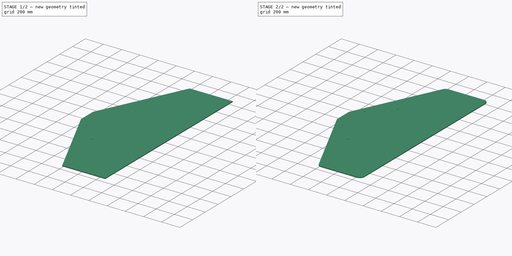
[diagram: build sequence overview — one tinted view per stage of 2, left to right]
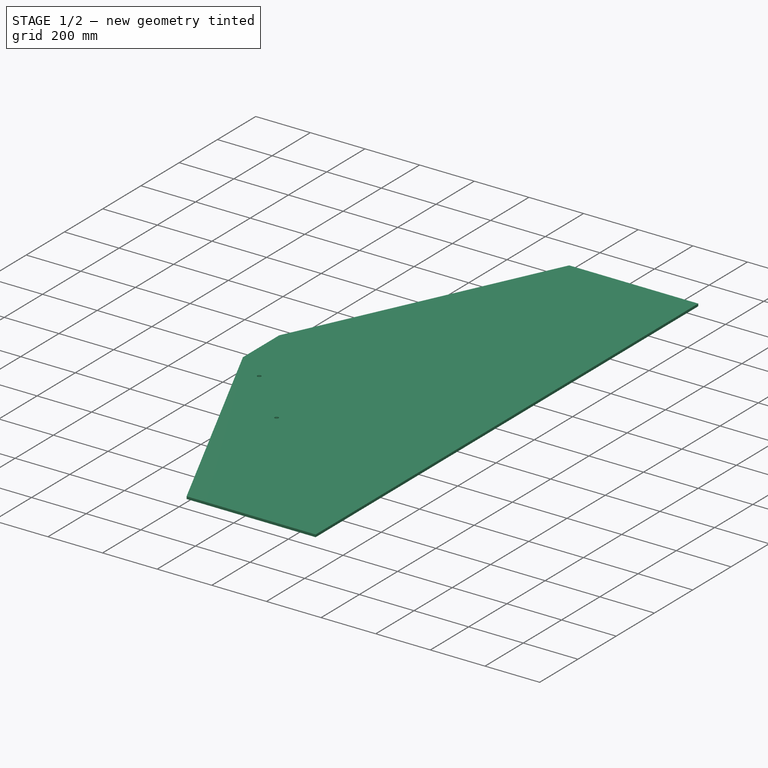
[diagram: stage 1 of 2 — iso view after this stage's code; geometry added in this stage tinted green]
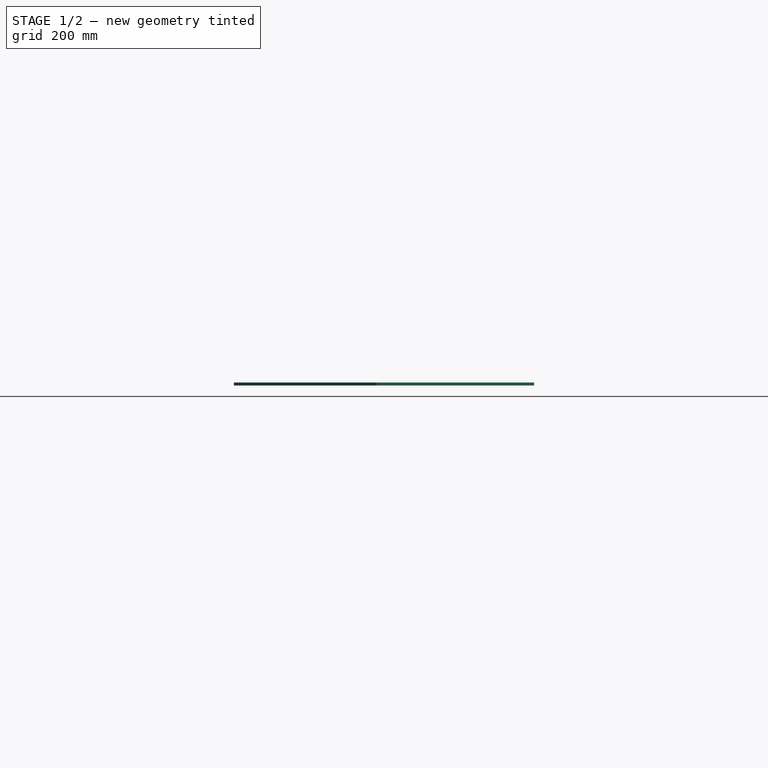
[diagram: stage 1 of 2 — front view after this stage's code; geometry added in this stage tinted green]
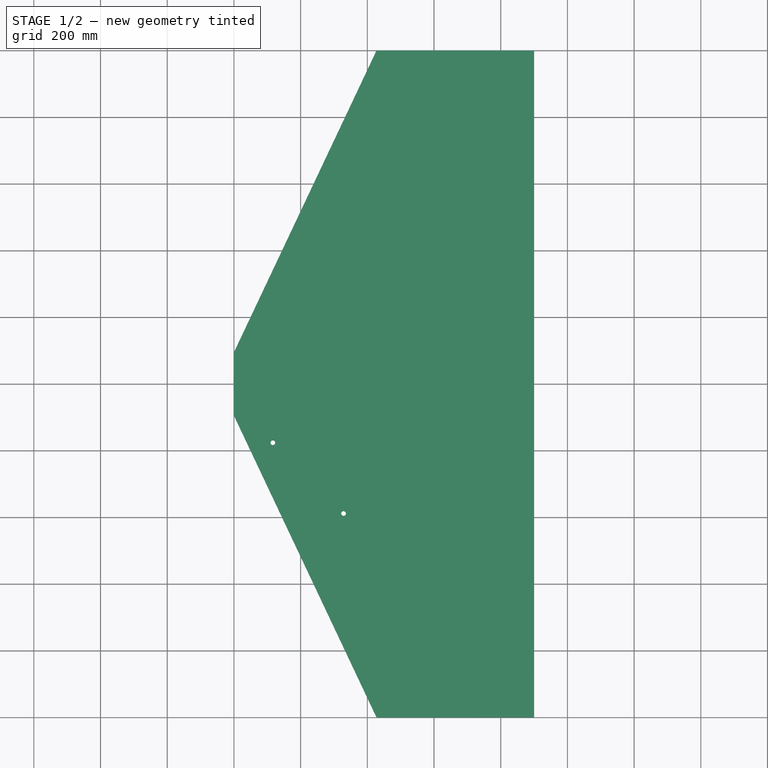
[diagram: stage 1 of 2 — top view after this stage's code; geometry added in this stage tinted green]
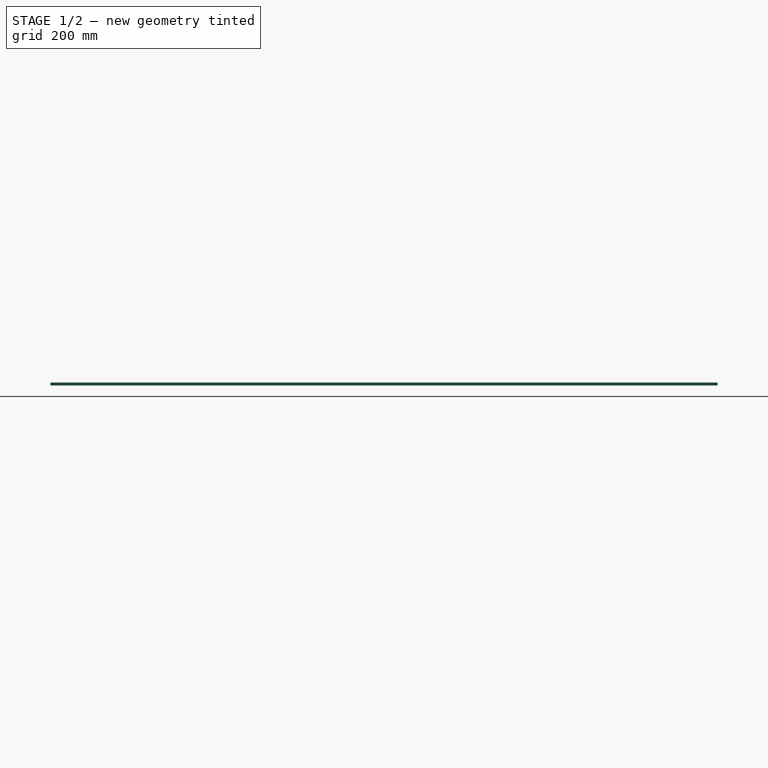
[diagram: stage 1 of 2 — right view after this stage's code; geometry added in this stage tinted green]
FCSTD DOCUMENT  (FreeCAD 1.0R39109 (Git))
Label: Tail_Vane
License: All rights reserved
LicenseURL: http://en.wikipedia.org/wiki/All_rights_reserved
objects: Sketcher::SketchObject×2, PartDesign::Pad×1, Spreadsheet::Sheet×1, PartDesign::Plane×1, PartDesign::Pocket×1, PartDesign::Mirrored×1, PartDesign::Fillet×1, PartDesign::Body×1
note: 17 computed .brp shape members not serialized (recipe doc carries the construction recipe); baked Part::Feature solids carry a one-line shape summary decoded from their .brp
EXTERNAL_REF file=../../Master_of_Puppets.FCStd obj=Alternator
EXTERNAL_REF file=../../Master_of_Puppets.FCStd obj=Spreadsheet
EXTERNAL_REF file=../../Master_of_Puppets.FCStd obj=Tail

FEATURE [Sketcher::SketchObject] Sketch
  ArcFitTolerance = 0
  AttachmentSupport = -> [XY_Plane001]
  FullyConstrained = true
  MakeInternals = false
  MapMode = 5
  expr: Constraints[16] = Spreadsheet.VaneWidth
  expr: Constraints[17] = Spreadsheet.VaneLength
  expr: Constraints[18] = Spreadsheet.LengthSmallSide
  expr: Constraints[19] = Spreadsheet.WidthSmall
  sketch-geometry (7):
    g0: LineSegment StartX=0 StartY=94.8607 StartZ=0 EndX=0 EndY=0 EndZ=0
    g1: LineSegment StartX=0 StartY=0 StartZ=0 EndX=0 EndY=-94.8607 EndZ=0
    g2: LineSegment StartX=0 StartY=-94.8607 StartZ=0 EndX=427.594 EndY=-1000 EndZ=0
    g3: LineSegment StartX=427.594 StartY=-1000 StartZ=0 EndX=900 EndY=-1000 EndZ=0
    g4: LineSegment StartX=900 StartY=-1000 StartZ=0 EndX=900 EndY=1000 EndZ=0
    g5: LineSegment StartX=900 StartY=1000 StartZ=0 EndX=427.594 EndY=1000 EndZ=0
    g6: LineSegment StartX=427.594 StartY=1000 StartZ=0 EndX=0 EndY=94.8607 EndZ=0
  constraints (20):
    c: PointOnObject(g0,g-2)
    c: Coincident(g0,g-1)
    c: Coincident(g-1,g1)
    c: PointOnObject(g1,g-2)
    c: Coincident(g1,g2)
    c: Coincident(g2,g3)
    c: Horizontal(g3)
    c: Coincident(g3,g4)
    c: Vertical(g4)
    c: Coincident(g4,g5)
    c: Horizontal(g5)
    c: Coincident(g5,g6)
    c: Coincident(g6,g0)
    c: Equal(g6,g2)
    c: Equal(g5,g3)
    c: Equal(g0,g1)
    c: DistanceX(g-1,g4) = 900
    c: DistanceY(g4,g4) = 2000
    c: DistanceY(g1,g1) = 94.8607
    c: DistanceX(g5,g5) = 472.406
FEATURE [PartDesign::Pad] Pad
  AllowMultiFace = false
  Direction = (0,0,1)
  Length = 9
  Length2 = 100
  Profile = -> Sketch
  Suppressed = false
  Type = 0
  expr: Length = Spreadsheet.VaneThickness
FEATURE [Spreadsheet::Sheet] Spreadsheet
  cells = A1='Inputs; A2='RotorRadius; B2(RotorRadius)==Master_of_Puppets#Spreadsheet.RotorDiskRadius; A3='BoomPipeDiameter; B3(BoomPipeDiameter)==Master_of_Puppets#Spreadsheet.BoomPipeDiameter; A4='HolesRadius; B4(HolesRadius)==Master_of_Puppets#Alternator.HolesRadius; A5='BracketLength; B5(BracketLength)==Master_of_Puppets#Spreadsheet.BracketLength; A6='BracketWidth; B6(BracketWidth)==Master_of_Puppets#Spreadsheet.BracketWidth; A7='VaneLength; B7(VaneLength)==Master_of_Puppets#Spreadsheet.VaneLength; A8='VaneWidth; B8(VaneWidth)==Master_of_Puppets#Spreadsheet.VaneWidth; A9='VaneThickness; B9(VaneThickness)==Master_of_Puppets#Spreadsheet.VaneThickness; A10='DistanceToFirstHole; B10(DistanceToFirstHole)==Master_of_Puppets#Tail.DistanceToFirstHole; A11='DistanceBetweenHoles; B11(DistanceBetweenHoles)==Master_of_Puppets#Tail.DistanceBetweenHoles; A12='VaneBracketAngle; B12(VaneBracketAngle)==Master_of_Puppets#Tail.VaneBracketAngle; A13='Calculated; A14='BoomPipeRadius; B14(BoomPipeRadius)==BoomPipeDiameter / 2; A15='Y_Holes; B15(Y_Holes)==BracketWidth / 2; C15='Duplicated in TailVaneBracket; A16='WidthAngleBracket; B16(WidthAngleBracket)==BracketWidth / cos(VaneBracketAngle); A17='HalfWidthAngleBracket; B17(HalfWidthAngleBracket)==WidthAngleBracket / 2; A18='LengthSmallSide; B18(LengthSmallSide)==tan(VaneBracketAngle) * WidthAngleBracket + BoomPipeRadius; A19='WidthSmall; B19(WidthSmall)==0.5 * VaneWidth / (1 - LengthSmallSide / VaneLength); A20='DistanceToFirstHoleFromMiddlePoint; B20(DistanceToFirstHoleFromMiddlePoint)==BracketLength - Y_Holes - DistanceToFirstHole
FEATURE [PartDesign::Plane] DatumPlane
  Length = 60
  MapMode = 2
  Placement = pos=(0,0,9) rot=(0,0,1;0rad)
  ResizeMode = 0
  Width = 60
  expr: .Placement.Base.z = Spreadsheet.VaneThickness
FEATURE [Sketcher::SketchObject] Sketch001  label="HolesSketch"
  ArcFitTolerance = 0
  AttachmentSupport = -> [DatumPlane]
  FullyConstrained = true
  MakeInternals = false
  MapMode = 5
  Placement = pos=(0,0,9) rot=(0,0,1;0rad)
  expr: Constraints[0] = Spreadsheet.BoomPipeRadius
  expr: Constraints[11] = Spreadsheet.BracketLength
  expr: Constraints[13] = Spreadsheet.DistanceToFirstHoleFromMiddlePoint
  expr: Constraints[18] = Spreadsheet.WidthAngleBracket / 2
  expr: Constraints[2] = Spreadsheet.Y_Holes
  expr: Constraints[4] = Spreadsheet.DistanceBetweenHoles
  expr: Constraints[6] = Spreadsheet.HolesRadius
  expr: Constraints[7] = Spreadsheet.HolesRadius
  expr: Constraints[8] = Spreadsheet.WidthAngleBracket
  sketch-geometry (7):
    g0: LineSegment [constr] StartX=353.553 StartY=-448.414 StartZ=0 EndX=388.909 EndY=-413.059 EndZ=0
    g1: LineSegment [constr] StartX=371.231 StartY=-430.736 StartZ=0 EndX=-35.3553 EndY=-24.15 EndZ=0
    g2: Circle CenterX=328.805 CenterY=-388.31 CenterZ=0 NormalX=0 NormalY=0 NormalZ=1 AngleXU=0 Radius=7
    g3: Circle CenterX=116.673 CenterY=-176.178 CenterZ=0 NormalX=0 NormalY=0 NormalZ=1 AngleXU=0 Radius=7
    g4: LineSegment [constr] StartX=388.909 StartY=-413.059 StartZ=0 EndX=0 EndY=-24.15 EndZ=0
    g5: LineSegment [constr] StartX=353.553 StartY=-448.414 StartZ=0 EndX=-70.7107 EndY=-24.15 EndZ=0
    g6: LineSegment [constr] StartX=-70.7107 StartY=-24.15 StartZ=0 EndX=0 EndY=-24.15 EndZ=0
  constraints (22):
    c: DistanceY(g4,g-1) = 24.15
    c: PointOnObject(g1,g0)
    c: Distance(g1,g0) = 25
    c: PointOnObject(g3,g1)
    c: Distance(g2,g3) = 300
    c: Angle(g1) = 2.35619
    c: Radius(g3) = 7
    c: Radius(g2) = 7
    c: Distance(g6,g4) = 70.7107
    c: Coincident(g4,g0)
    c: Coincident(g5,g0)
    c: Distance(g6,g0) = 600
    c: PointOnObject(g2,g1)
    c: Distance(g2,g1) = 515
    c: Perpendicular(g0,g1)
    c: PointOnObject(g4,g-2)
    c: Horizontal(g6)
    c: PointOnObject(g1,g6)
    c: Distance(g4,g1) = 35.3553
    c: Coincident(g5,g6)
    c: Coincident(g4,g6)
    c: Perpendicular(g5,g0)
FEATURE [PartDesign::Pocket] Pocket
  BaseFeature = -> Pad
  Direction = (0,0,-1)
  Length = 9
  Length2 = 100
  Profile = -> Sketch001
  Suppressed = false
  Type = 0
  expr: Length = Spreadsheet.VaneThickness
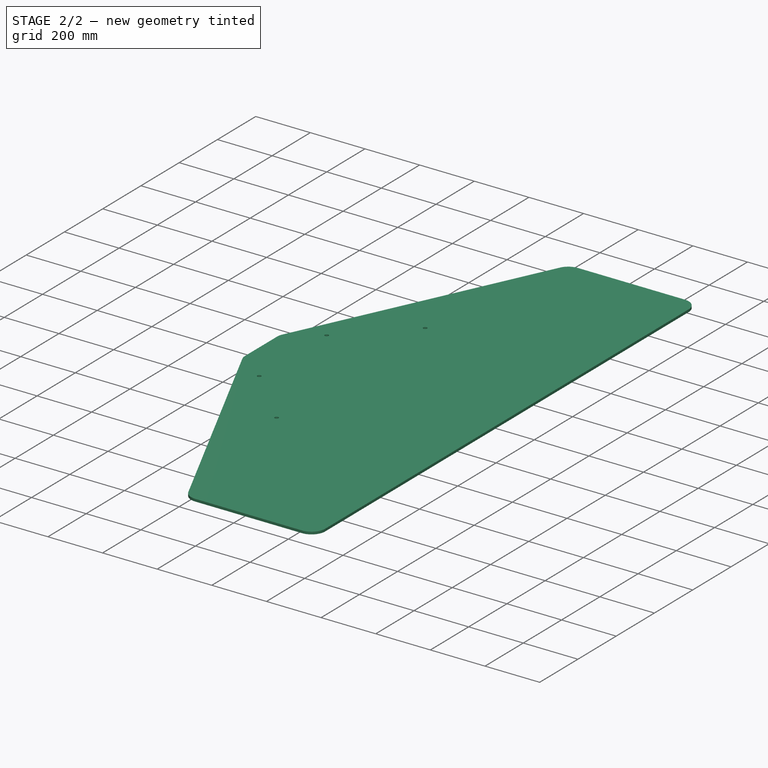
[diagram: stage 2 of 2 — iso view after this stage's code; geometry added in this stage tinted green]
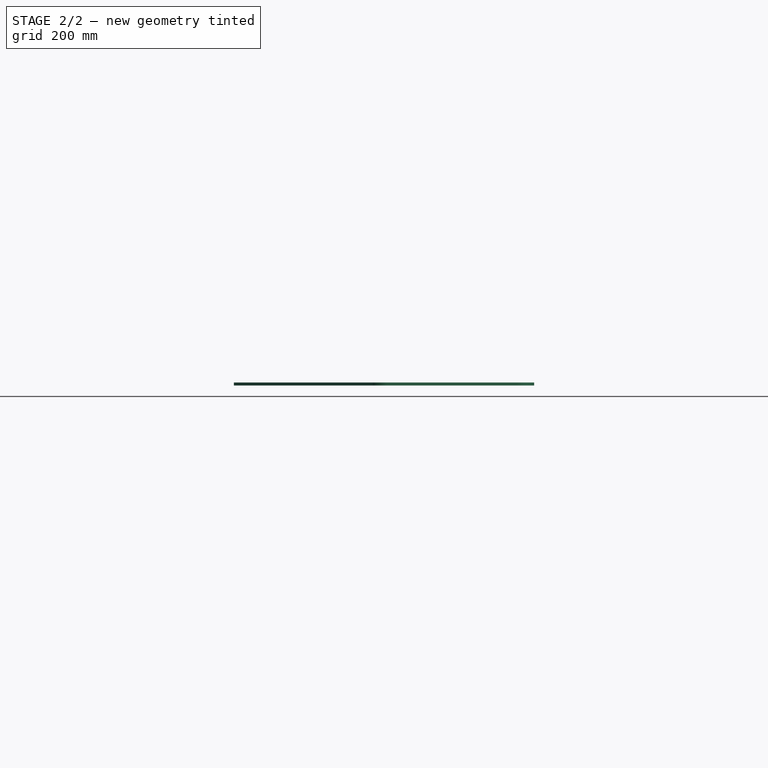
[diagram: stage 2 of 2 — front view after this stage's code; geometry added in this stage tinted green]
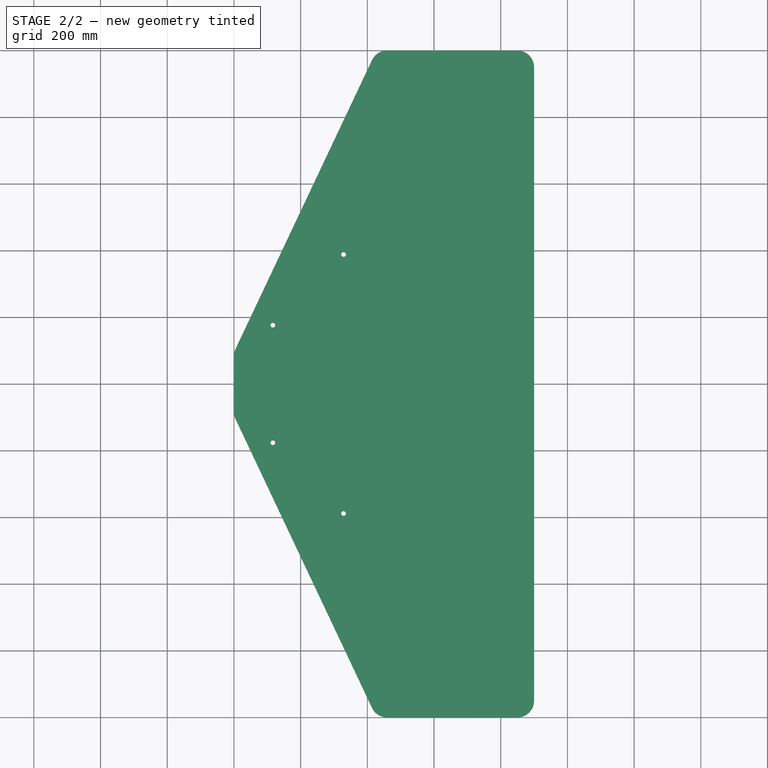
[diagram: stage 2 of 2 — top view after this stage's code; geometry added in this stage tinted green]
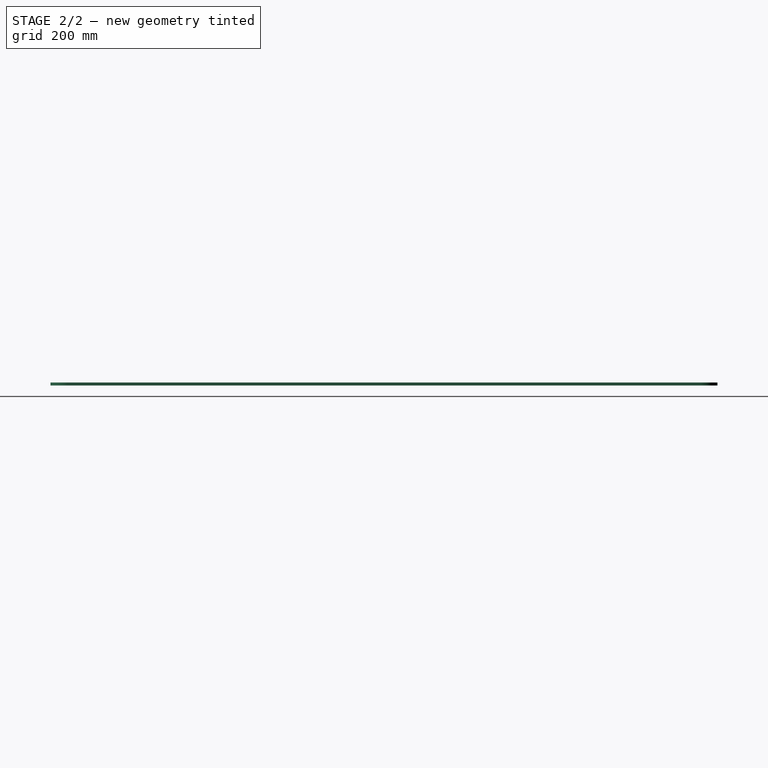
[diagram: stage 2 of 2 — right view after this stage's code; geometry added in this stage tinted green]
FEATURE [PartDesign::Mirrored] Mirrored
  BaseFeature = -> Pocket
  MirrorPlane = -> Sketch001 [H_Axis]
  Originals = -> [Pocket]
  Suppressed = false
  TransformMode = 0
FEATURE [PartDesign::Fillet] Fillet
  Base = -> Mirrored [Edge1,Edge8,Edge28,Edge29,Edge27,Edge5]
  BaseFeature = -> Mirrored
  Radius = 50
  SupportTransform = false
  Suppressed = false
  UseAllEdges = false
FEATURE [PartDesign::Body] Fillet001Body  label="Tail_Vane"
  AllowCompound = false
  Group = -> [Sketch,Pad,DatumPlane,Sketch001,Pocket,Mirrored,Fillet]
  Openafpm_Flat = true
  Origin = -> Origin001
  Placement = pos=(0,0,8) rot=(0,0,1;0rad)
  Tip = -> Fillet
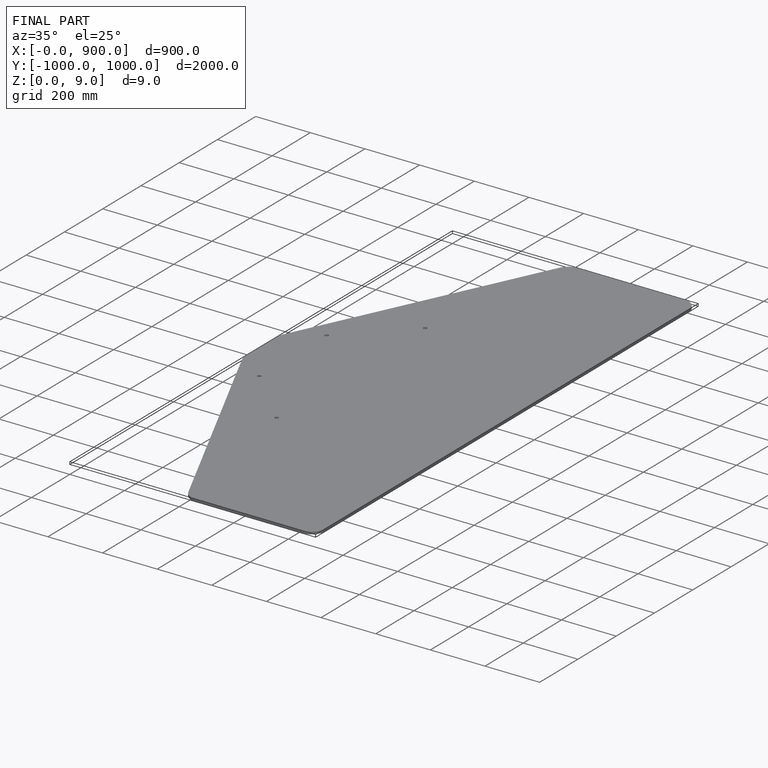
[diagram: finished part — iso view with bounding-box wireframe]
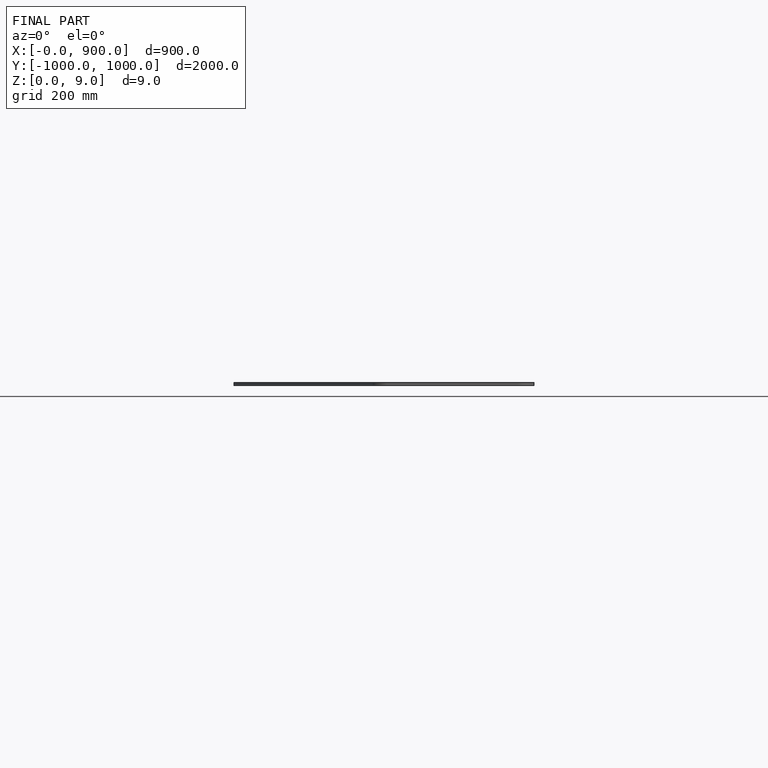
[diagram: finished part — front view with bounding-box wireframe]
